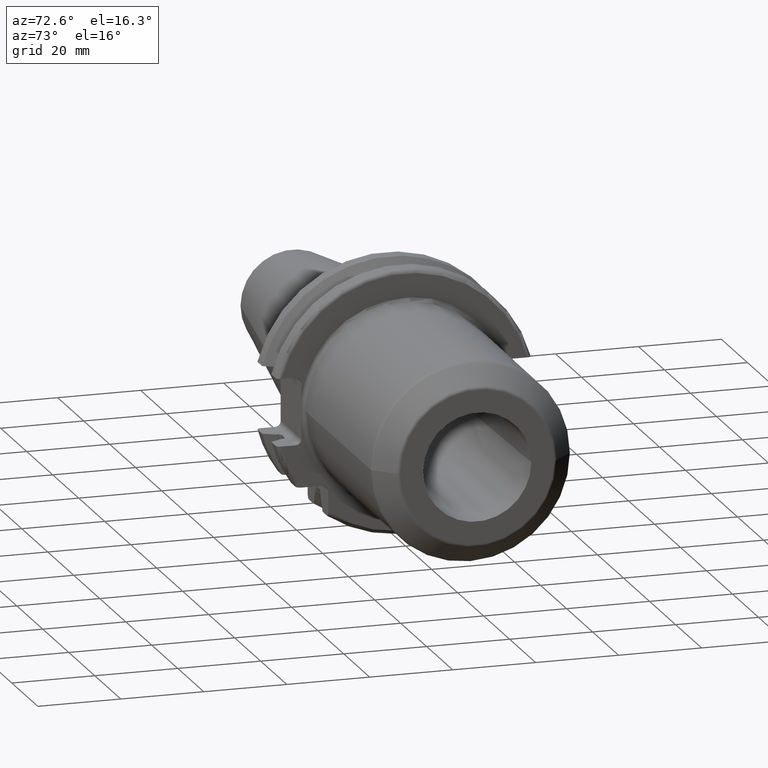
[diagram: clean part render]
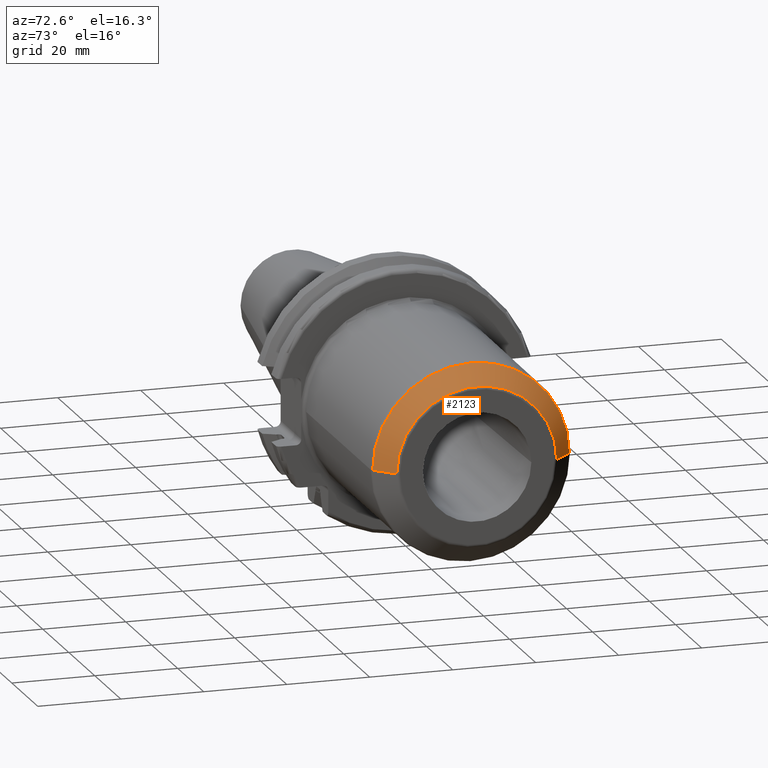
[diagram: same view with one face highlighted and labeled with its STEP entity id]
A machine part, auxiliary view. The second image highlights one B-rep face of the part: STEP entity #2123.
In plain terms, the highlighted conical surface has half-angle 45 deg.
Its self-contained STEP definition (entity closure, byte-faithful):
#355=CARTESIAN_POINT('',(7.470710678119E1,0.E0,0.E0));
#356=DIRECTION('',(1.E0,0.E0,0.E0));
#357=DIRECTION('',(0.E0,1.E0,-1.003070421522E-11));
#358=AXIS2_PLACEMENT_3D('',#355,#356,#357);
#360=DIRECTION('',(7.071067811865E-1,7.071067811865E-1,1.111721380293E-10));
#361=VECTOR('',#360,6.242640687118E0);
#362=CARTESIAN_POINT('',(7.029289321881E1,-2.370710678119E1,
-3.764420848767E-9));
#363=LINE('',#362,#361);
#364=CARTESIAN_POINT('',(7.029289321881E1,0.E0,0.E0));
#365=DIRECTION('',(-1.E0,0.E0,0.E0));
#366=DIRECTION('',(0.E0,-1.E0,1.003127076911E-11));
#367=AXIS2_PLACEMENT_3D('',#364,#365,#366);
#440=DIRECTION('',(7.071067811865E-1,-7.071067811865E-1,-1.111723132371E-10));
#441=VECTOR('',#440,6.242640687118E0);
#442=CARTESIAN_POINT('',(7.029289321881E1,2.370710678119E1,3.764424091407E-9));
#443=LINE('',#442,#441);
#1610=CARTESIAN_POINT('',(7.470710678119E1,-1.929289321881E1,
1.935189426358E-10));
#1611=CARTESIAN_POINT('',(7.470710678119E1,1.929289321881E1,
-1.935213053338E-10));
#1612=VERTEX_POINT('',#1610);
#1613=VERTEX_POINT('',#1611);
#1618=CARTESIAN_POINT('',(7.029289321881E1,2.370710678119E1,
-2.377989759208E-10));
#1619=CARTESIAN_POINT('',(7.029289321881E1,-2.370710678119E1,
2.377960726376E-10));
#1620=VERTEX_POINT('',#1618);
#1621=VERTEX_POINT('',#1619);
#2109=CARTESIAN_POINT('',(7.25E1,0.E0,0.E0));
#2110=DIRECTION('',(-1.E0,0.E0,0.E0));
#2111=DIRECTION('',(0.E0,0.E0,-1.E0));
#2112=AXIS2_PLACEMENT_3D('',#2109,#2110,#2111);
#2113=CONICAL_SURFACE('',#2112,2.15E1,4.5E1);
#2115=ORIENTED_EDGE('',*,*,#2114,.T.);
#2117=ORIENTED_EDGE('',*,*,#2116,.F.);
#2118=ORIENTED_EDGE('',*,*,#2103,.T.);
#2120=ORIENTED_EDGE('',*,*,#2119,.T.);
#2121=EDGE_LOOP('',(#2115,#2117,#2118,#2120));
#2122=FACE_OUTER_BOUND('',#2121,.F.);
#2123=ADVANCED_FACE('',(#2122),#2113,.T.);
#359=CIRCLE('',#358,1.929289321881E1);
#368=CIRCLE('',#367,2.370710678119E1);
#2103=EDGE_CURVE('',#1621,#1620,#368,.T.);
#2114=EDGE_CURVE('',#1613,#1612,#359,.T.);
#2116=EDGE_CURVE('',#1621,#1612,#363,.T.);
#2119=EDGE_CURVE('',#1620,#1613,#443,.T.);